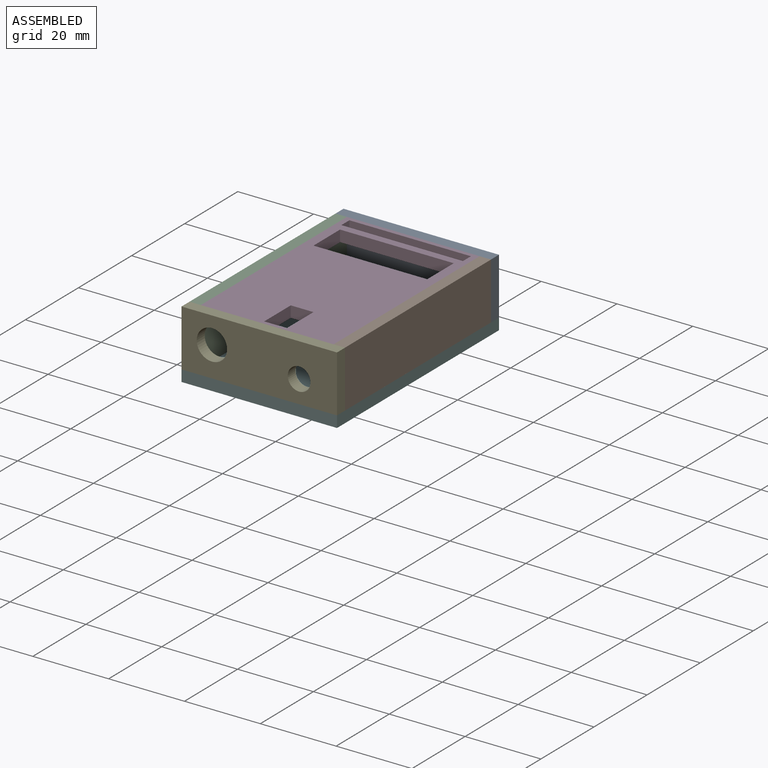
[diagram: assembled view]
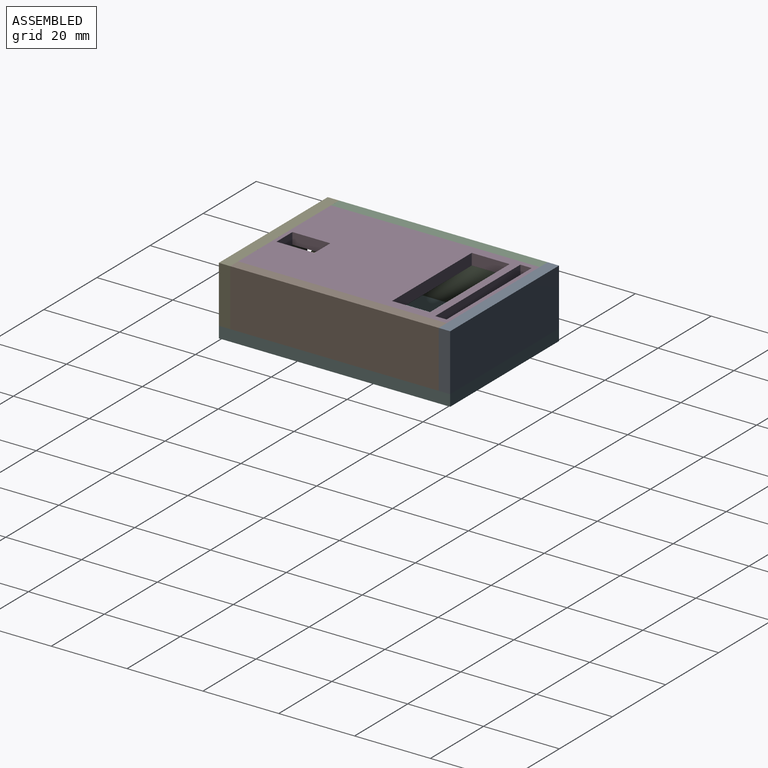
[diagram: assembled view, second angle]
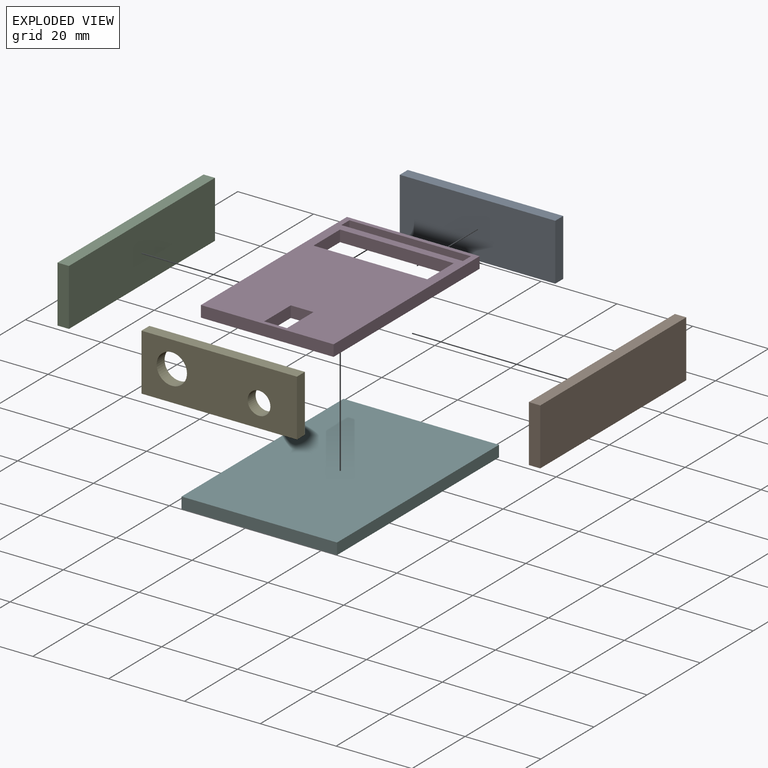
[diagram: exploded view]
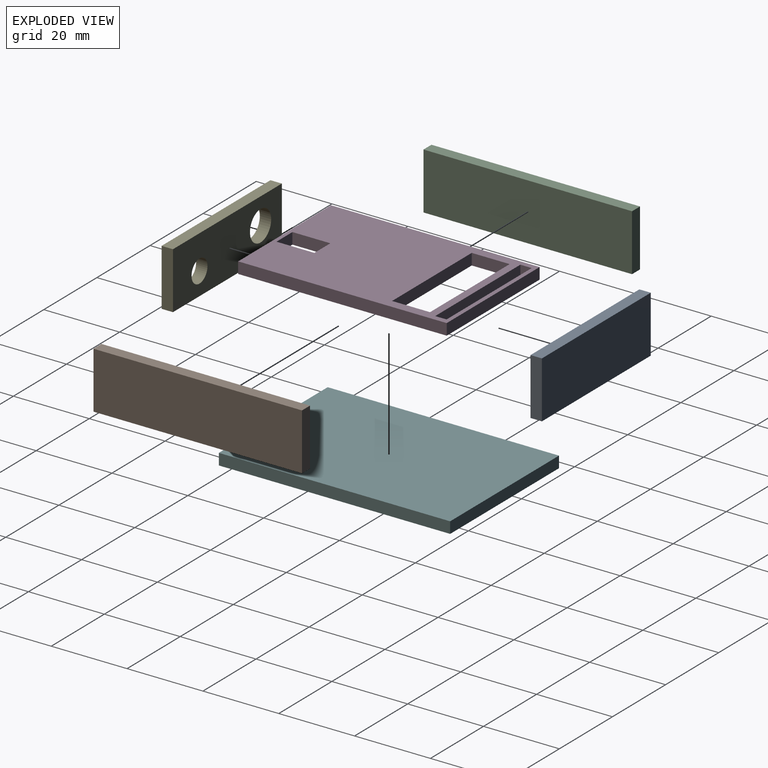
[diagram: exploded view, second angle]
ASSEMBLY  parts=6 mates=5
PART A: 6 faces, bbox 41x15x3 mm
  f0: plane 41x3mm, normal (0,1,0), area 123mm2, adj f1,f3,f4,f5
  f1: plane 15x3mm, normal (-1,0,0), area 45mm2, adj f0,f2,f4,f5
  f2: plane 41x3mm, normal (0,-1,0), area 123mm2, adj f1,f3,f4,f5
  f3: plane 15x3mm, normal (1,0,0), area 45mm2, adj f0,f2,f4,f5
  f4: plane 41x15mm, normal (0,0,1), area 615mm2, adj f0,f1,f2,f3
  f5: plane 41x15mm, normal (0,0,-1), area 615mm2, adj f0,f1,f2,f3
PART B: 6 faces, bbox 15x55x3 mm
  f0: plane 15x3mm, normal (0,1,0), area 45mm2, adj f1,f3,f4,f5
  f1: plane 55x3mm, normal (-1,0,0), area 165mm2, adj f0,f2,f4,f5
  f2: plane 15x3mm, normal (0,-1,0), area 45mm2, adj f1,f3,f4,f5
  f3: plane 55x3mm, normal (1,0,0), area 165mm2, adj f0,f2,f4,f5
  f4: plane 55x15mm, normal (0,0,1), area 825mm2, adj f0,f1,f2,f3
  f5: plane 55x15mm, normal (0,0,-1), area 825mm2, adj f0,f1,f2,f3
PART C: 6 faces, bbox 15x55x3 mm
  f0: plane 15x3mm, normal (0,1,0), area 45mm2, adj f1,f3,f4,f5
  f1: plane 55x3mm, normal (-1,0,0), area 165mm2, adj f0,f2,f4,f5
  f2: plane 15x3mm, normal (0,-1,0), area 45mm2, adj f1,f3,f4,f5
  f3: plane 55x3mm, normal (1,0,0), area 165mm2, adj f0,f2,f4,f5
  f4: plane 55x15mm, normal (0,0,1), area 825mm2, adj f0,f1,f2,f3
  f5: plane 55x15mm, normal (0,0,-1), area 825mm2, adj f0,f1,f2,f3
PART D: 18 faces, bbox 35x55x3 mm
  f0: plane 35x3mm, normal (0,1,0), area 105mm2, adj f1,f15,f16,f17
  f1: plane 55x3mm, normal (-1,0,0), area 165mm2, adj f0,f2,f16,f17
  f2: plane 35x3mm, normal (0,-1,0), area 105mm2, adj f1,f15,f16,f17
  f3: plane 3x3mm, normal (1,0,0), area 9mm2, adj f4,f12,f16,f17
  f4: plane 32.06x3mm, normal (0,-1,0), area 96.2mm2, adj f3,f5,f16,f17
  f5: plane 3x3mm, normal (-1,0,0), area 9mm2, adj f4,f12,f16,f17
  f6: plane 10x3mm, normal (1,0,0), area 30mm2, adj f7,f13,f16,f17
  f7: plane 30x3mm, normal (0,-1,0), area 90mm2, adj f6,f8,f16,f17
  f8: plane 10x3mm, normal (-1,0,0), area 30mm2, adj f7,f13,f16,f17
  f9: plane 10x3mm, normal (1,0,0), area 30mm2, adj f10,f14,f16,f17
  f10: plane 6x3mm, normal (0,-1,0), area 18mm2, adj f9,f11,f16,f17
  f11: plane 10x3mm, normal (-1,0,0), area 30mm2, adj f10,f14,f16,f17
  f12: plane 32.06x3mm, normal (0,1,0), area 96.2mm2, adj f3,f5,f16,f17
  f13: plane 30x3mm, normal (0,1,0), area 90mm2, adj f6,f8,f16,f17
  f14: plane 6x3mm, normal (0,1,0), area 18mm2, adj f9,f11,f16,f17
  f15: plane 55x3mm, normal (1,0,0), area 165mm2, adj f0,f2,f16,f17
  f16: plane 55x35mm, normal (0,0,1), area 1468.8mm2, adj f0,f1,f2,f3,f4,f5,f6,f7
  f17: plane 55x35mm, normal (0,0,-1), area 1468.8mm2, adj f0,f1,f2,f3,f4,f5,f6,f7
PART E: 8 faces, bbox 41x15x3 mm
  f0: plane 15x3mm, normal (-1,0,0), area 45mm2, adj f1,f4,f6,f7
  f1: plane 41x3mm, normal (0,-1,0), area 123mm2, adj f0,f2,f6,f7
  f2: plane 15x3mm, normal (1,0,0), area 45mm2, adj f1,f4,f6,f7
  f3: cylinder r=4mm len=8mm, axis (0,0,-1), area 75.4mm2, adj f6,f7
  f4: plane 41x3mm, normal (0,1,0), area 123mm2, adj f0,f2,f6,f7
  f5: cylinder r=3mm len=6mm, axis (0,0,-1), area 56.5mm2, adj f6,f7
  f6: plane 41x15mm, normal (0,0,1), area 536.5mm2, adj f0,f1,f2,f3,f4,f5
  f7: plane 41x15mm, normal (0,0,-1), area 536.5mm2, adj f0,f1,f2,f3,f4,f5
PART F: 6 faces, bbox 41x61x3 mm
  f0: plane 41x3mm, normal (0,1,0), area 123mm2, adj f1,f3,f4,f5
  f1: plane 61x3mm, normal (-1,0,0), area 183mm2, adj f0,f2,f4,f5
  f2: plane 41x3mm, normal (0,-1,0), area 123mm2, adj f1,f3,f4,f5
  f3: plane 61x3mm, normal (1,0,0), area 183mm2, adj f0,f2,f4,f5
  f4: plane 61x41mm, normal (0,0,1), area 2501mm2, adj f0,f1,f2,f3
  f5: plane 61x41mm, normal (0,0,-1), area 2501mm2, adj f0,f1,f2,f3
PLACE A rot(axis=(-1,0,0),90deg) t=(-96.45,36.08,-77.42)mm
PLACE B rot(axis=(0,-1,0),90deg) t=(5.56,-18.92,-20.66)mm
PLACE C rot(axis=(0,-1,0),90deg) t=(-32.44,-20.98,-67.88)mm
PLACE D rot(axis=(0,1,0),0deg) t=(69.3,12.6,15)mm
PLACE E rot(axis=(1,0,0),90deg) t=(-45.75,-18.92,106.09)mm
PLACE F at identity
MATE fastened D.f15 <-> B.f4  axis (1,0,0) through (2.56,-18.92,18)mm
MATE fastened B.f2 <-> E.f7  axis (0,-1,0) through (5.56,-18.92,3)mm
MATE fastened C.f2 <-> E.f7  axis (0,-1,0) through (-35.44,-18.92,3)mm
MATE fastened E.f1 <-> F.f4  axis (0,0,-1) through (5.56,-21.92,3)mm
MATE fastened A.f5 <-> C.f0  axis (0,-1,0) through (-35.44,36.08,18)mm
